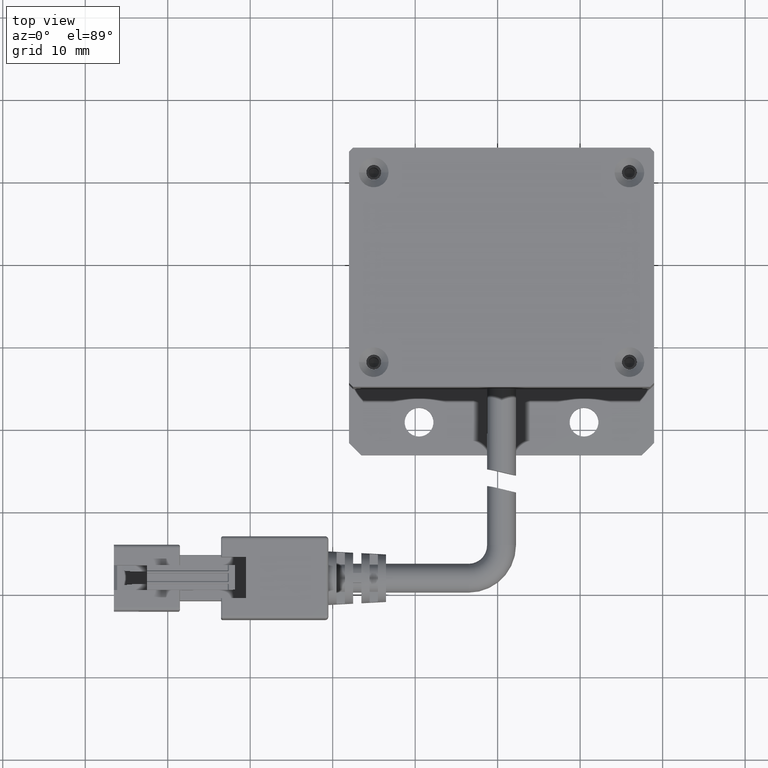
[diagram: clean part render]
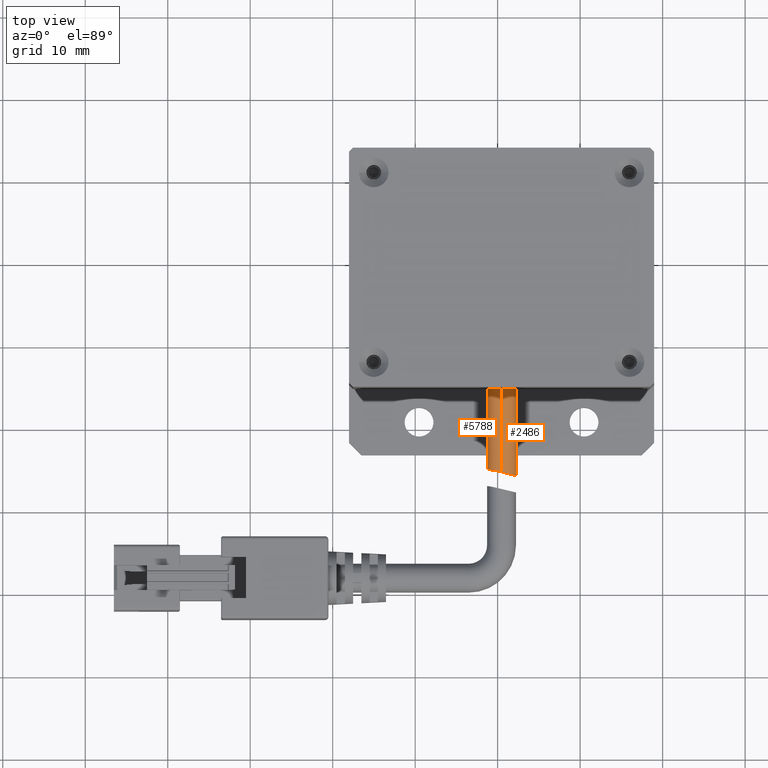
[diagram: same view with one multi-face feature highlighted, each face labeled with its STEP entity id]
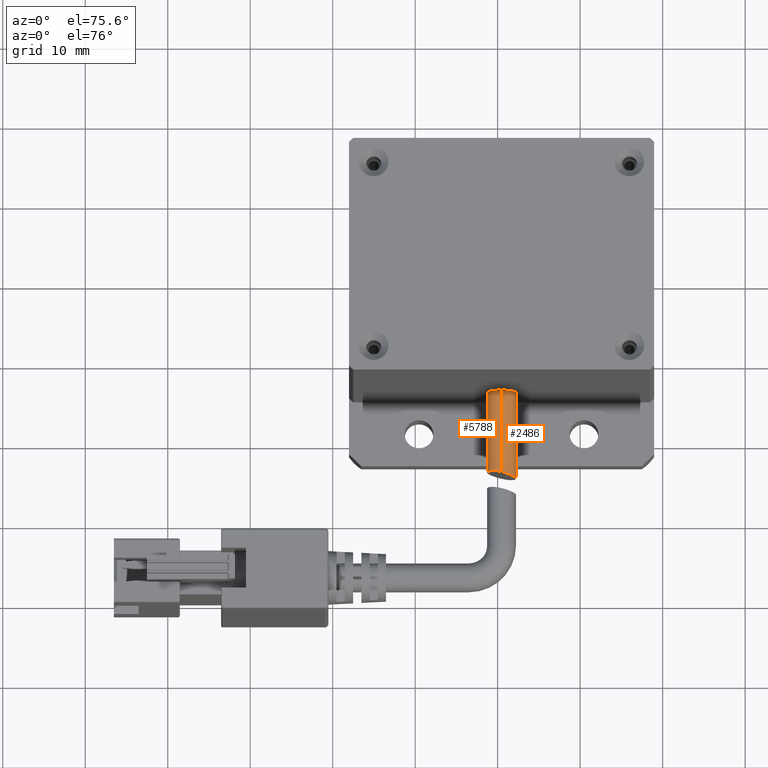
[diagram: same view with one multi-face feature highlighted, each face labeled with its STEP entity id]
A machine part, top view. The highlighted faces form ONE feature: a constant-radius fillet chain: 2 tangent blend faces with common blend radius 1.75 mm. The faces share edges in the B-rep.
A second angle (auxiliary view) of the same feature is appended — it is thin or edge-on in the first view.
Their STEP definitions:
[1] entity #5788 (Cylinder):
#61 = CARTESIAN_POINT ( 'NONE',  ( 1.535578217775078700, -20.13082518556747400, -13.05046344472418700 ) ) ;
#93 = CARTESIAN_POINT ( 'NONE',  ( -0.8829166779657443600, -19.48468405301713700, -13.16416666437881700 ) ) ;
#182 = VECTOR ( 'NONE', #3796, 1000.000000000000000 ) ;
#466 = DIRECTION ( 'NONE',  ( 8.673617379884040400E-017, 1.000000000000000000, 0.0000000000000000000 ) ) ;
#637 = EDGE_CURVE ( 'NONE', #8994, #9162, #1650, .T. ) ;
#815 = VERTEX_POINT ( 'NONE', #3901 ) ;
#909 = CARTESIAN_POINT ( 'NONE',  ( 1.166614089816537100, -19.69058775308953800, -13.13145880621759800 ) ) ;
#941 = CARTESIAN_POINT ( 'NONE',  ( -1.163803789966338000, -19.68805494168609700, -13.13188692217396700 ) ) ;
#1106 = ORIENTED_EDGE ( 'NONE', *, *, #637, .T. ) ;
#1130 = B_SPLINE_CURVE_WITH_KNOTS ( 'NONE', 3,
 ( #2600, #9340, #4292, #10202, #5148, #61, #5974, #909, #6845, #1777, #7696, #2636, #8548, #3456, #9371, #4325, #10242, #5171, #93, #6011, #941, #6877, #1811, #7731, #2662, #8576 ),
 .UNSPECIFIED., .F., .F.,
 ( 4, 2, 2, 2, 2, 2, 2, 2, 2, 2, 2, 2, 4 ),
 ( 0.005549513656743566500, 0.005894900259941780600, 0.006240286863139995500, 0.006931060069536424500, 0.007276446672734636000, 0.007621833275932846600, 0.007967219879131057200, 0.008312606482329268700, 0.009003379688725691700, 0.009348766291923903100, 0.009694152895122112900, 0.01038492610151854300, 0.01107569930791497100 ),
 .UNSPECIFIED. ) ;
#1160 = DIRECTION ( 'NONE',  ( -8.673617379884035500E-017, 0.0000000000000000000, -1.000000000000000000 ) ) ;
#1224 = CARTESIAN_POINT ( 'NONE',  ( 1.749999999999997800, -21.00000000000000000, -24.00000000000000000 ) ) ;
#1650 = LINE ( 'NONE', #9645, #4154 ) ;
#1677 = FACE_OUTER_BOUND ( 'NONE', #4972, .T. ) ;
#1777 = CARTESIAN_POINT ( 'NONE',  ( 0.8857364131307998700, -19.48628471095230500, -13.16393041921084100 ) ) ;
#1811 = CARTESIAN_POINT ( 'NONE',  ( -1.534091329191297200, -20.12812025467603000, -13.05101511062562200 ) ) ;
#2081 = CYLINDRICAL_SURFACE ( 'NONE', #7503, 1.750000000000000000 ) ;
#2187 = LINE ( 'NONE', #7185, #182 ) ;
#2600 = CARTESIAN_POINT ( 'NONE',  ( 1.749999999999997600, -21.00000000001703900, -12.85374541199112000 ) ) ;
#2636 = CARTESIAN_POINT ( 'NONE',  ( 0.5720377848462179200, -19.34211670380370100, -13.18435915489732800 ) ) ;
#2662 = CARTESIAN_POINT ( 'NONE',  ( -1.750000000000002000, -20.77298881193271600, -12.90858189400512900 ) ) ;
#3346 = CARTESIAN_POINT ( 'NONE',  ( 1.749999999999997600, -21.00000000001703900, -12.85374541199112000 ) ) ;
#3456 = CARTESIAN_POINT ( 'NONE',  ( 0.2333437090126599400, -19.26179349237575200, -13.19477251861018600 ) ) ;
#3657 = ORIENTED_EDGE ( 'NONE', *, *, #7593, .F. ) ;
#3796 = DIRECTION ( 'NONE',  ( -8.673617379884035500E-017, 0.0000000000000000000, -1.000000000000000000 ) ) ;
#3901 = CARTESIAN_POINT ( 'NONE',  ( -1.750000000000002400, -21.00000000000000000, -24.00000000000000000 ) ) ;
#3998 = EDGE_CURVE ( 'NONE', #10940, #815, #2187, .T. ) ;
#4154 = VECTOR ( 'NONE', #1160, 1000.000000000000000 ) ;
#4292 = CARTESIAN_POINT ( 'NONE',  ( 1.739328876934396600, -20.77629019491777700, -12.90730824238137100 ) ) ;
#4325 = CARTESIAN_POINT ( 'NONE',  ( -0.2302824617177467400, -19.24968975552350900, -13.19626329241300900 ) ) ;
#4859 = AXIS2_PLACEMENT_3D ( 'NONE', #10619, #5549, #466 ) ;
#4934 = CIRCLE ( 'NONE', #4859, 1.750000000000001600 ) ;
#4972 = EDGE_LOOP ( 'NONE', ( #10786, #1106, #3657, #5087 ) ) ;
#5087 = ORIENTED_EDGE ( 'NONE', *, *, #3998, .F. ) ;
#5148 = CARTESIAN_POINT ( 'NONE',  ( 1.663309565073656500, -20.44444386334794900, -12.98304872701514000 ) ) ;
#5171 = CARTESIAN_POINT ( 'NONE',  ( -0.7817500750386691100, -19.43001772703639700, -13.17209493491230000 ) ) ;
#5549 = DIRECTION ( 'NONE',  ( -8.673617379884036700E-017, 1.608122649676636600E-016, -1.000000000000000000 ) ) ;
#5788 = ADVANCED_FACE ( 'NONE', ( #1677 ), #2081, .T. ) ;
#5974 = CARTESIAN_POINT ( 'NONE',  ( 1.407093644932125000, -19.93473808757565300, -13.08858870556785400 ) ) ;
#6011 = CARTESIAN_POINT ( 'NONE',  ( -1.073618485174957900, -19.61325286093633100, -13.14414732536906200 ) ) ;
#6845 = CARTESIAN_POINT ( 'NONE',  ( 1.077152003861421300, -19.61594561869126000, -13.14371460892786900 ) ) ;
#6877 = CARTESIAN_POINT ( 'NONE',  ( -1.405586436272343800, -19.93258107546301600, -13.08899996315690300 ) ) ;
#7185 = CARTESIAN_POINT ( 'NONE',  ( -1.750000000000000400, -21.00000000000000000, -4.000000000000000000 ) ) ;
#7503 = AXIS2_PLACEMENT_3D ( 'NONE', #9449, #7805, #10320 ) ;
#7593 = EDGE_CURVE ( 'NONE', #815, #9162, #4934, .T. ) ;
#7696 = CARTESIAN_POINT ( 'NONE',  ( 0.7846889541589233700, -19.43153976897102500, -13.17187531248913900 ) ) ;
#7731 = CARTESIAN_POINT ( 'NONE',  ( -1.705298805772528500, -20.54660560255236500, -12.96111770510111900 ) ) ;
#7805 = DIRECTION ( 'NONE',  ( -8.673617379884035500E-017, 0.0000000000000000000, -1.000000000000000000 ) ) ;
#8148 = EDGE_CURVE ( 'NONE', #8994, #10940, #1130, .T. ) ;
#8548 = CARTESIAN_POINT ( 'NONE',  ( 0.4595250260592102500, -19.30747292485220600, -13.18889283159405900 ) ) ;
#8576 = CARTESIAN_POINT ( 'NONE',  ( -1.750000000000001600, -20.99999999999999600, -12.85374541199523800 ) ) ;
#8994 = VERTEX_POINT ( 'NONE', #3346 ) ;
#9162 = VERTEX_POINT ( 'NONE', #1224 ) ;
#9340 = CARTESIAN_POINT ( 'NONE',  ( 1.750000000001088900, -20.88787794949412900, -12.88082944630150800 ) ) ;
#9371 = CARTESIAN_POINT ( 'NONE',  ( 0.1186597977539988300, -19.25015748039415400, -13.19620487614486800 ) ) ;
#9449 = CARTESIAN_POINT ( 'NONE',  ( -3.469446951953615200E-016, -21.00000000000000000, -4.000000000000000000 ) ) ;
#9645 = CARTESIAN_POINT ( 'NONE',  ( 1.749999999999999600, -21.00000000000000000, -4.000000000000000000 ) ) ;
#10202 = CARTESIAN_POINT ( 'NONE',  ( 1.696020140198986100, -20.55410011990671400, -12.95853891446144200 ) ) ;
#10242 = CARTESIAN_POINT ( 'NONE',  ( -0.4603915800480800100, -19.29575539842645400, -13.19081673275104900 ) ) ;
#10320 = DIRECTION ( 'NONE',  ( -1.000000000000000000, 0.0000000000000000000, 0.0000000000000000000 ) ) ;
#10483 = CARTESIAN_POINT ( 'NONE',  ( -1.750000000000001600, -20.99999999999999600, -12.85374541199523800 ) ) ;
#10619 = CARTESIAN_POINT ( 'NONE',  ( -2.081668171172168900E-015, -21.00000000000000000, -24.00000000000000000 ) ) ;
#10786 = ORIENTED_EDGE ( 'NONE', *, *, #8148, .F. ) ;
#10940 = VERTEX_POINT ( 'NONE', #10483 ) ;
[2] entity #2486 (Cylinder):
#182 = VECTOR ( 'NONE', #3796, 1000.000000000000000 ) ;
#637 = EDGE_CURVE ( 'NONE', #8994, #9162, #1650, .T. ) ;
#642 = DIRECTION ( 'NONE',  ( -8.673617379884036700E-017, 1.608122649676636600E-016, -1.000000000000000000 ) ) ;
#708 = CARTESIAN_POINT ( 'NONE',  ( -1.695783131388199500, -21.44659483113647600, -12.74407468247039600 ) ) ;
#757 = CARTESIAN_POINT ( 'NONE',  ( 0.2317456618003218300, -22.73847815924472100, -12.43562896957148700 ) ) ;
#787 = CARTESIAN_POINT ( 'NONE',  ( 1.738903943961260100, -21.22680104479457300, -12.79847052505602400 ) ) ;
#815 = VERTEX_POINT ( 'NONE', #3901 ) ;
#1160 = DIRECTION ( 'NONE',  ( -8.673617379884035500E-017, 0.0000000000000000000, -1.000000000000000000 ) ) ;
#1224 = CARTESIAN_POINT ( 'NONE',  ( 1.749999999999997800, -21.00000000000000000, -24.00000000000000000 ) ) ;
#1385 = EDGE_CURVE ( 'NONE', #9162, #815, #1526, .T. ) ;
#1526 = CIRCLE ( 'NONE', #4468, 1.750000000000001600 ) ;
#1574 = CARTESIAN_POINT ( 'NONE',  ( -1.577343408449312500, -21.76641234235642800, -12.66456622377122300 ) ) ;
#1613 = CARTESIAN_POINT ( 'NONE',  ( 0.5700110887626685900, -22.65861379477416500, -12.45300945954481100 ) ) ;
#1650 = LINE ( 'NONE', #9645, #4154 ) ;
#1665 = CARTESIAN_POINT ( 'NONE',  ( 1.749999999999997600, -21.00000000001703900, -12.85374541199112000 ) ) ;
#2187 = LINE ( 'NONE', #7185, #182 ) ;
#2437 = CARTESIAN_POINT ( 'NONE',  ( -1.400123343756723500, -22.05594569310727200, -12.59341388189650400 ) ) ;
#2477 = CARTESIAN_POINT ( 'NONE',  ( 0.8868231090872755700, -22.51302129116446300, -12.48556618786167500 ) ) ;
#2486 = ADVANCED_FACE ( 'NONE', ( #10849 ), #6057, .T. ) ;
#3278 = CARTESIAN_POINT ( 'NONE',  ( -1.166680640964987000, -22.30936494740319600, -12.53271419691315300 ) ) ;
#3310 = CARTESIAN_POINT ( 'NONE',  ( 1.165138540954303400, -22.31084734917877600, -12.53236268818625000 ) ) ;
#3346 = CARTESIAN_POINT ( 'NONE',  ( 1.749999999999997600, -21.00000000001703900, -12.85374541199112000 ) ) ;
#3796 = DIRECTION ( 'NONE',  ( -8.673617379884035500E-017, 0.0000000000000000000, -1.000000000000000000 ) ) ;
#3901 = CARTESIAN_POINT ( 'NONE',  ( -1.750000000000002400, -21.00000000000000000, -24.00000000000000000 ) ) ;
#3947 = ORIENTED_EDGE ( 'NONE', *, *, #6179, .F. ) ;
#3998 = EDGE_CURVE ( 'NONE', #10940, #815, #2187, .T. ) ;
#4127 = CARTESIAN_POINT ( 'NONE',  ( -0.8882836485445253500, -22.51219722937299000, -12.48575266420563200 ) ) ;
#4154 = VECTOR ( 'NONE', #1160, 1000.000000000000000 ) ;
#4166 = CARTESIAN_POINT ( 'NONE',  ( 1.399067594417941600, -22.05734438059800700, -12.59307400553471400 ) ) ;
#4468 = AXIS2_PLACEMENT_3D ( 'NONE', #6610, #642, #6581 ) ;
#4525 = ORIENTED_EDGE ( 'NONE', *, *, #3998, .T. ) ;
#4755 = ORIENTED_EDGE ( 'NONE', *, *, #637, .F. ) ;
#4977 = CARTESIAN_POINT ( 'NONE',  ( -0.4664398076731844900, -22.70237264522983600, -12.44326765519136800 ) ) ;
#5018 = CARTESIAN_POINT ( 'NONE',  ( 1.577515754561253700, -21.76603196643001000, -12.66466057389594000 ) ) ;
#5216 = ORIENTED_EDGE ( 'NONE', *, *, #1385, .F. ) ;
#5796 = CARTESIAN_POINT ( 'NONE',  ( -1.750000000000001600, -20.99999999999999600, -12.85374541199523800 ) ) ;
#5829 = CARTESIAN_POINT ( 'NONE',  ( 0.1143675271137051800, -22.75008852178301300, -12.43314114593756700 ) ) ;
#5862 = CARTESIAN_POINT ( 'NONE',  ( 1.695393407067125300, -21.44818169922171000, -12.74368066077442100 ) ) ;
#6057 = CYLINDRICAL_SURFACE ( 'NONE', #9859, 1.750000000000000000 ) ;
#6179 = EDGE_CURVE ( 'NONE', #10940, #8994, #8801, .T. ) ;
#6581 = DIRECTION ( 'NONE',  ( 8.673617379884040400E-017, 1.000000000000000000, 0.0000000000000000000 ) ) ;
#6610 = CARTESIAN_POINT ( 'NONE',  ( -2.081668171172168900E-015, -21.00000000000000000, -24.00000000000000000 ) ) ;
#6643 = CARTESIAN_POINT ( 'NONE',  ( -1.663176937604100300, -21.55609583788822200, -12.71679629769977300 ) ) ;
#6689 = CARTESIAN_POINT ( 'NONE',  ( 0.4596497953816041600, -22.69255263656401300, -12.44560222096892400 ) ) ;
#6729 = CARTESIAN_POINT ( 'NONE',  ( 1.749999999998901300, -21.11259535780548200, -12.82654704628776400 ) ) ;
#7185 = CARTESIAN_POINT ( 'NONE',  ( -1.750000000000000400, -21.00000000000000000, -4.000000000000000000 ) ) ;
#7517 = CARTESIAN_POINT ( 'NONE',  ( -1.524723456685270300, -21.86636312546070100, -12.63983320359136500 ) ) ;
#7555 = CARTESIAN_POINT ( 'NONE',  ( 0.7836108006337039200, -22.56903361170427400, -12.47294418049525400 ) ) ;
#8322 = CARTESIAN_POINT ( 'NONE',  ( -1.750000000000002700, -21.11398474173103800, -12.82621142879136800 ) ) ;
#8347 = CARTESIAN_POINT ( 'NONE',  ( -1.327172936213764500, -22.14638225774494300, -12.57153964476421000 ) ) ;
#8384 = CARTESIAN_POINT ( 'NONE',  ( 1.076946922460810800, -22.38415099628991800, -12.51522565446515100 ) ) ;
#8514 = DIRECTION ( 'NONE',  ( -1.000000000000000000, 0.0000000000000000000, 0.0000000000000000000 ) ) ;
#8526 = EDGE_LOOP ( 'NONE', ( #4755, #3947, #4525, #5216 ) ) ;
#8801 = B_SPLINE_CURVE_WITH_KNOTS ( 'NONE', 3,
 ( #5796, #8322, #9137, #708, #6643, #1574, #7517, #2437, #8347, #3278, #9181, #4127, #10044, #4977, #10901, #5829, #757, #6689, #1613, #7555, #2477, #8384, #3310, #9224, #4166, #10080, #5018, #10942, #5862, #787, #6729, #1665 ),
 .UNSPECIFIED., .F., .F.,
 ( 4, 2, 2, 2, 2, 2, 2, 2, 2, 2, 2, 2, 2, 2, 2, 4 ),
 ( 0.0000000000000000000, 0.0003468446035464729600, 0.0006936892070929459200, 0.001040533810639419000, 0.001387378414185891800, 0.001734223017732364900, 0.002081067621278837200, 0.002774756828371783200, 0.003121601431918256300, 0.003468446035464729300, 0.003815290639011201900, 0.004162135242557674400, 0.004508979846104148300, 0.004855824449650621300, 0.005202669053197094300, 0.005549513656743566500 ),
 .UNSPECIFIED. ) ;
#8994 = VERTEX_POINT ( 'NONE', #3346 ) ;
#9137 = CARTESIAN_POINT ( 'NONE',  ( -1.738974647885554100, -21.22604102705016200, -12.79865732427991700 ) ) ;
#9162 = VERTEX_POINT ( 'NONE', #1224 ) ;
#9181 = CARTESIAN_POINT ( 'NONE',  ( -1.078968665407790400, -22.38261163016337500, -12.51558317904294300 ) ) ;
#9224 = CARTESIAN_POINT ( 'NONE',  ( 1.327473218612731200, -22.14616030568681600, -12.57159090378878700 ) ) ;
#9318 = CARTESIAN_POINT ( 'NONE',  ( -3.469446951953615200E-016, -21.00000000000000000, -4.000000000000000000 ) ) ;
#9351 = DIRECTION ( 'NONE',  ( -8.673617379884035500E-017, 0.0000000000000000000, -1.000000000000000000 ) ) ;
#9645 = CARTESIAN_POINT ( 'NONE',  ( 1.749999999999999600, -21.00000000000000000, -4.000000000000000000 ) ) ;
#9859 = AXIS2_PLACEMENT_3D ( 'NONE', #9318, #9351, #8514 ) ;
#10044 = CARTESIAN_POINT ( 'NONE',  ( -0.7851368695073430700, -22.56822982228131700, -12.47312504640206800 ) ) ;
#10080 = CARTESIAN_POINT ( 'NONE',  ( 1.523859664700666100, -21.86788190166113900, -12.63945877809845100 ) ) ;
#10483 = CARTESIAN_POINT ( 'NONE',  ( -1.750000000000001600, -20.99999999999999600, -12.85374541199523800 ) ) ;
#10849 = FACE_OUTER_BOUND ( 'NONE', #8526, .T. ) ;
#10901 = CARTESIAN_POINT ( 'NONE',  ( -0.2327748308034249000, -22.74982140216755200, -12.43319863496539300 ) ) ;
#10940 = VERTEX_POINT ( 'NONE', #10483 ) ;
#10942 = CARTESIAN_POINT ( 'NONE',  ( 1.663189483478142900, -21.55602308542838900, -12.71681447787945100 ) ) ;